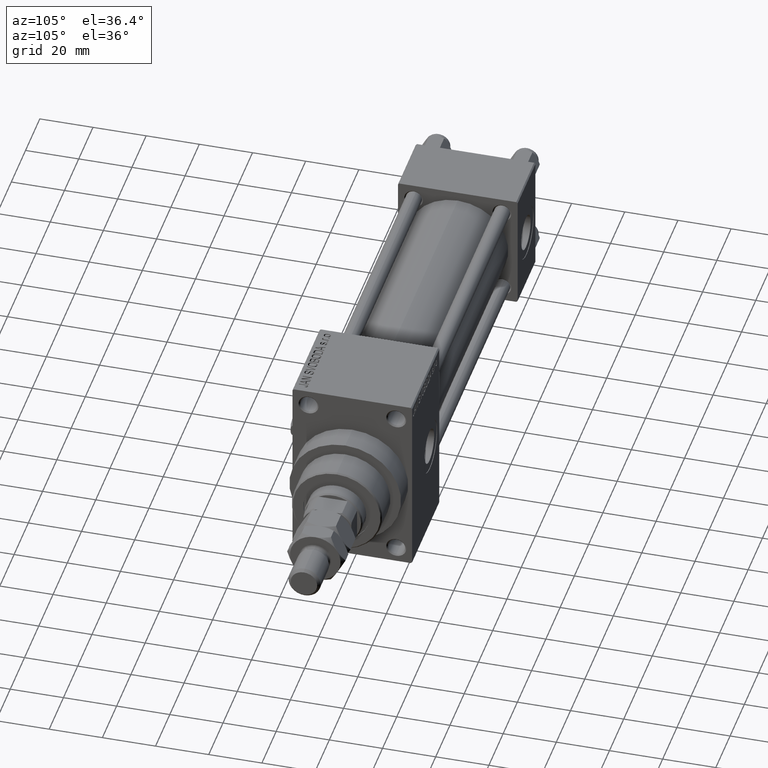
[diagram: clean part render]
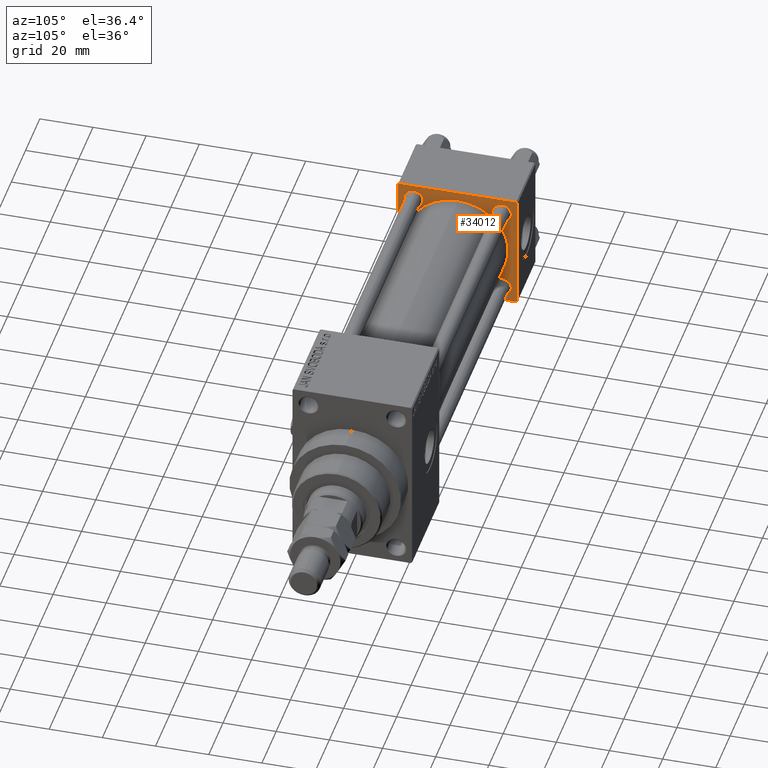
[diagram: same view with one face highlighted and labeled with its STEP entity id]
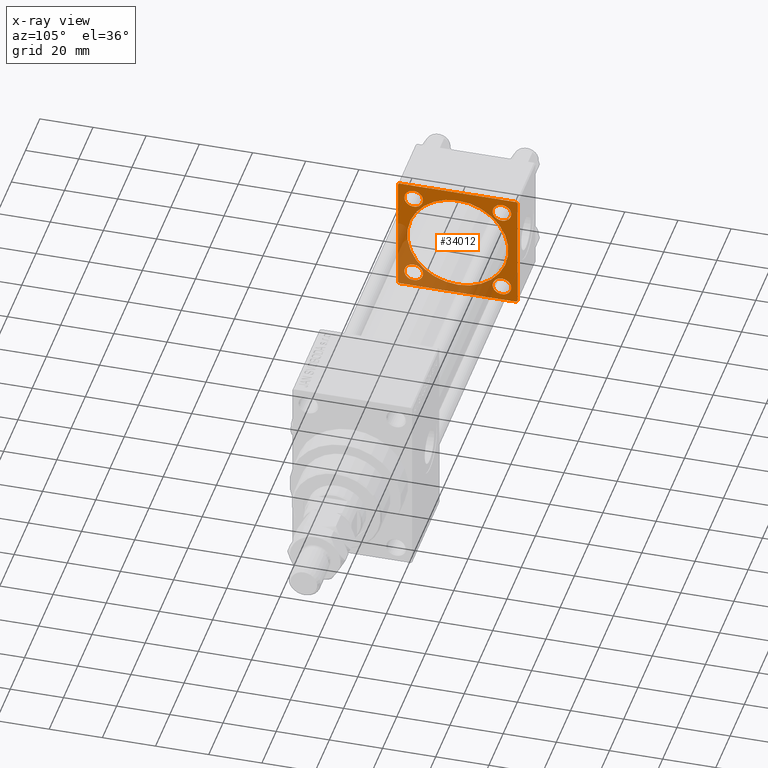
[diagram: x-ray of the same camera — body ghosted, the highlighted face saturated]
A machine part, auxiliary view. The second image highlights one B-rep face of the part: STEP entity #34012.
The next image is the same camera in x-ray: the body ghosted, the highlighted face saturated — about 36% of this face is hidden behind the body in this view.
In plain terms, the highlighted planar face has unit normal (-1, 0, 0).
Its self-contained STEP definition (entity closure, byte-faithful):
#781 = FACE_BOUND ( 'NONE', #8004, .T. ) ;
#1005 = DIRECTION ( 'NONE',  ( -1.000000000000000000, 0.000000000000000000, -0.000000000000000000 ) ) ;
#1059 = AXIS2_PLACEMENT_3D ( 'NONE', #39213, #1005, #47109 ) ;
#1289 = FACE_BOUND ( 'NONE', #22256, .T. ) ;
#1407 = EDGE_CURVE ( 'NONE', #49249, #23749, #19034, .T. ) ;
#1524 = AXIS2_PLACEMENT_3D ( 'NONE', #46007, #42186, #31465 ) ;
#1911 = CARTESIAN_POINT ( 'NONE',  ( 25.00000000000000000, -21.99999999999997158, -22.50000000000000711 ) ) ;
#2138 = EDGE_CURVE ( 'NONE', #45616, #9106, #15018, .T. ) ;
#2153 = EDGE_LOOP ( 'NONE', ( #38649, #6108 ) ) ;
#2847 = ORIENTED_EDGE ( 'NONE', *, *, #11459, .T. ) ;
#3067 = VECTOR ( 'NONE', #40077, 1000.000000000000000 ) ;
#3137 = CARTESIAN_POINT ( 'NONE',  ( 25.00000000000000000, -22.50000000000000000, 22.00000000000000000 ) ) ;
#3171 = EDGE_LOOP ( 'NONE', ( #14715, #17188, #38747, #24097, #47128, #11143, #6271, #31227 ) ) ;
#3297 = CIRCLE ( 'NONE', #23607, 3.500000000000003109 ) ;
#4238 = VERTEX_POINT ( 'NONE', #42453 ) ;
#5284 = CARTESIAN_POINT ( 'NONE',  ( 25.00000000000000000, 22.50000000000000000, -21.99999999999996803 ) ) ;
#5353 = PLANE ( 'NONE',  #12742 ) ;
#5509 = CARTESIAN_POINT ( 'NONE',  ( 25.00000000000000000, 22.50000000000000000, 22.50000000000000355 ) ) ;
#5865 = VERTEX_POINT ( 'NONE', #45171 ) ;
#5962 = CIRCLE ( 'NONE', #29555, 3.499999999999975131 ) ;
#6031 = VECTOR ( 'NONE', #16960, 1000.000000000000000 ) ;
#6108 = ORIENTED_EDGE ( 'NONE', *, *, #1407, .T. ) ;
#6271 = ORIENTED_EDGE ( 'NONE', *, *, #15678, .T. ) ;
#6984 = LINE ( 'NONE', #31139, #37593 ) ;
#7757 = DIRECTION ( 'NONE',  ( -1.000000000000000000, 0.000000000000000000, -0.000000000000000000 ) ) ;
#8004 = EDGE_LOOP ( 'NONE', ( #14800, #12056 ) ) ;
#8222 = EDGE_CURVE ( 'NONE', #30710, #5865, #50309, .T. ) ;
#8687 = CARTESIAN_POINT ( 'NONE',  ( 25.00000000000000000, 0.000000000000000000, 0.000000000000000000 ) ) ;
#9106 = VERTEX_POINT ( 'NONE', #40431 ) ;
#10540 = VERTEX_POINT ( 'NONE', #38725 ) ;
#11143 = ORIENTED_EDGE ( 'NONE', *, *, #32190, .T. ) ;
#11256 = AXIS2_PLACEMENT_3D ( 'NONE', #37040, #29396, #40608 ) ;
#11459 = EDGE_CURVE ( 'NONE', #23916, #47083, #3297, .T. ) ;
#11530 = CARTESIAN_POINT ( 'NONE',  ( 25.00000000000000000, -21.99999999999998579, -22.50000000000000711 ) ) ;
#12056 = ORIENTED_EDGE ( 'NONE', *, *, #22491, .T. ) ;
#12562 = EDGE_LOOP ( 'NONE', ( #2847, #49112 ) ) ;
#12581 = AXIS2_PLACEMENT_3D ( 'NONE', #45262, #37875, #26672 ) ;
#12624 = EDGE_CURVE ( 'NONE', #27920, #45005, #34236, .T. ) ;
#12742 = AXIS2_PLACEMENT_3D ( 'NONE', #8687, #32609, #48149 ) ;
#13154 = CARTESIAN_POINT ( 'NONE',  ( 25.00000000000000000, 22.50000000000000000, 22.50000000000000355 ) ) ;
#13354 = VERTEX_POINT ( 'NONE', #15117 ) ;
#13666 = ORIENTED_EDGE ( 'NONE', *, *, #2138, .T. ) ;
#14715 = ORIENTED_EDGE ( 'NONE', *, *, #37389, .F. ) ;
#14800 = ORIENTED_EDGE ( 'NONE', *, *, #8222, .T. ) ;
#14979 = DIRECTION ( 'NONE',  ( 1.000000000000000000, -0.000000000000000000, 0.000000000000000000 ) ) ;
#15018 = CIRCLE ( 'NONE', #12581, 3.499999999999978684 ) ;
#15117 = CARTESIAN_POINT ( 'NONE',  ( 25.00000000000000000, -22.50000000000000000, -21.99999999999997158 ) ) ;
#15140 = CARTESIAN_POINT ( 'NONE',  ( 24.99999999999999289, -2.752562955852396712E-16, -19.00000000000000000 ) ) ;
#15678 = EDGE_CURVE ( 'NONE', #4238, #13354, #6984, .T. ) ;
#15776 = DIRECTION ( 'NONE',  ( -1.000000000000000000, 0.000000000000000000, -0.000000000000000000 ) ) ;
#15805 = DIRECTION ( 'NONE',  ( 0.000000000000000000, -0.7071067811865474617, 0.7071067811865474617 ) ) ;
#16229 = DIRECTION ( 'NONE',  ( 0.000000000000000000, -1.000000000000000000, -7.709882115452476934E-17 ) ) ;
#16960 = DIRECTION ( 'NONE',  ( 0.000000000000000000, 0.000000000000000000, -1.000000000000000000 ) ) ;
#17188 = ORIENTED_EDGE ( 'NONE', *, *, #31960, .T. ) ;
#17868 = CARTESIAN_POINT ( 'NONE',  ( 25.00000000000000000, -21.99999999999997868, 22.50000000000000000 ) ) ;
#18652 = DIRECTION ( 'NONE',  ( -0.000000000000000000, -0.7071067811865525687, -0.7071067811865425767 ) ) ;
#18917 = EDGE_CURVE ( 'NONE', #34116, #36369, #43312, .T. ) ;
#19034 = CIRCLE ( 'NONE', #46711, 3.499999999999975131 ) ;
#19139 = EDGE_CURVE ( 'NONE', #23749, #49249, #5962, .T. ) ;
#19154 = LINE ( 'NONE', #3137, #25042 ) ;
#20265 = CARTESIAN_POINT ( 'NONE',  ( 25.00000000000000000, 16.59999999999999787, -20.10000000000000853 ) ) ;
#20872 = EDGE_CURVE ( 'NONE', #47083, #23916, #31115, .T. ) ;
#21175 = DIRECTION ( 'NONE',  ( 0.000000000000000000, 0.000000000000000000, 1.000000000000000000 ) ) ;
#21637 = DIRECTION ( 'NONE',  ( 0.000000000000000000, 0.000000000000000000, 1.000000000000000000 ) ) ;
#22136 = CARTESIAN_POINT ( 'NONE',  ( 25.00000000000000000, 22.50000000000000000, 21.99999999999999645 ) ) ;
#22256 = EDGE_LOOP ( 'NONE', ( #13666, #39378 ) ) ;
#22348 = DIRECTION ( 'NONE',  ( 0.000000000000000000, 0.000000000000000000, 1.000000000000000000 ) ) ;
#22384 = DIRECTION ( 'NONE',  ( 0.000000000000000000, 0.000000000000000000, 1.000000000000000000 ) ) ;
#22491 = EDGE_CURVE ( 'NONE', #5865, #30710, #45001, .T. ) ;
#23225 = VECTOR ( 'NONE', #42603, 1000.000000000000000 ) ;
#23281 = CARTESIAN_POINT ( 'NONE',  ( 25.00000000000000000, -16.59999999999999076, -16.60000000000000853 ) ) ;
#23607 = AXIS2_PLACEMENT_3D ( 'NONE', #35158, #15776, #27500 ) ;
#23749 = VERTEX_POINT ( 'NONE', #42975 ) ;
#23916 = VERTEX_POINT ( 'NONE', #39097 ) ;
#24097 = ORIENTED_EDGE ( 'NONE', *, *, #18917, .T. ) ;
#24288 = LINE ( 'NONE', #36509, #3067 ) ;
#24646 = EDGE_CURVE ( 'NONE', #34116, #48167, #37073, .T. ) ;
#25042 = VECTOR ( 'NONE', #18652, 999.9999999999998863 ) ;
#25473 = CARTESIAN_POINT ( 'NONE',  ( 25.00000000000000000, -16.59999999999999076, -16.60000000000000853 ) ) ;
#26324 = DIRECTION ( 'NONE',  ( 0.000000000000000000, 0.000000000000000000, -1.000000000000000000 ) ) ;
#26672 = DIRECTION ( 'NONE',  ( 0.000000000000000000, 0.000000000000000000, 1.000000000000000000 ) ) ;
#26714 = CIRCLE ( 'NONE', #1524, 19.00000000000000000 ) ;
#27500 = DIRECTION ( 'NONE',  ( 0.000000000000000000, 0.000000000000000000, 1.000000000000000000 ) ) ;
#27920 = VERTEX_POINT ( 'NONE', #43492 ) ;
#28049 = VECTOR ( 'NONE', #48325, 1000.000000000000000 ) ;
#28325 = AXIS2_PLACEMENT_3D ( 'NONE', #32909, #47694, #21175 ) ;
#28920 = VERTEX_POINT ( 'NONE', #1911 ) ;
#29343 = AXIS2_PLACEMENT_3D ( 'NONE', #37419, #14979, #22384 ) ;
#29396 = DIRECTION ( 'NONE',  ( -1.000000000000000000, 0.000000000000000000, -0.000000000000000000 ) ) ;
#29555 = AXIS2_PLACEMENT_3D ( 'NONE', #25473, #41008, #21637 ) ;
#29795 = ORIENTED_EDGE ( 'NONE', *, *, #48414, .F. ) ;
#30710 = VERTEX_POINT ( 'NONE', #20265 ) ;
#30807 = EDGE_LOOP ( 'NONE', ( #45987, #29795 ) ) ;
#30861 = CARTESIAN_POINT ( 'NONE',  ( 25.00000000000000000, 21.99999999999999289, 22.50000000000000355 ) ) ;
#31115 = CIRCLE ( 'NONE', #1059, 3.500000000000003109 ) ;
#31139 = CARTESIAN_POINT ( 'NONE',  ( 25.00000000000000000, -22.50000000000000000, 22.50000000000000000 ) ) ;
#31149 = AXIS2_PLACEMENT_3D ( 'NONE', #37391, #34084, #22348 ) ;
#31227 = ORIENTED_EDGE ( 'NONE', *, *, #38827, .T. ) ;
#31465 = DIRECTION ( 'NONE',  ( 0.000000000000000000, 0.000000000000000000, 1.000000000000000000 ) ) ;
#31846 = FACE_BOUND ( 'NONE', #30807, .T. ) ;
#31960 = EDGE_CURVE ( 'NONE', #10540, #48167, #24288, .T. ) ;
#32190 = EDGE_CURVE ( 'NONE', #36593, #4238, #19154, .T. ) ;
#32529 = CARTESIAN_POINT ( 'NONE',  ( 25.00000000000000000, 21.99999999999999289, 22.50000000000000355 ) ) ;
#32609 = DIRECTION ( 'NONE',  ( -1.000000000000000000, 0.000000000000000000, -0.000000000000000000 ) ) ;
#32909 = CARTESIAN_POINT ( 'NONE',  ( 25.00000000000000000, 16.59999999999999787, -16.60000000000000497 ) ) ;
#33370 = CARTESIAN_POINT ( 'NONE',  ( 25.00000000000000000, -16.59999999999999076, -13.10000000000003162 ) ) ;
#34012 = ADVANCED_FACE ( 'NONE', ( #35670, #781, #1289, #40242, #31846, #47385 ), #5353, .F. ) ;
#34084 = DIRECTION ( 'NONE',  ( -1.000000000000000000, 0.000000000000000000, -0.000000000000000000 ) ) ;
#34116 = VERTEX_POINT ( 'NONE', #22136 ) ;
#34236 = CIRCLE ( 'NONE', #29343, 19.00000000000000000 ) ;
#35158 = CARTESIAN_POINT ( 'NONE',  ( 25.00000000000000000, 16.59999999999999787, 16.60000000000000497 ) ) ;
#35272 = VECTOR ( 'NONE', #15805, 1000.000000000000114 ) ;
#35651 = VECTOR ( 'NONE', #16229, 1000.000000000000000 ) ;
#35670 = FACE_BOUND ( 'NONE', #2153, .T. ) ;
#36369 = VERTEX_POINT ( 'NONE', #32529 ) ;
#36509 = CARTESIAN_POINT ( 'NONE',  ( 25.00000000000000000, 22.50000000000000000, -21.99999999999998224 ) ) ;
#36593 = VERTEX_POINT ( 'NONE', #17868 ) ;
#37040 = CARTESIAN_POINT ( 'NONE',  ( 25.00000000000000000, -16.59999999999999076, 16.60000000000000853 ) ) ;
#37073 = LINE ( 'NONE', #5509, #6031 ) ;
#37103 = CARTESIAN_POINT ( 'NONE',  ( 25.00000000000000000, 22.50000000000000000, -22.49999999999999645 ) ) ;
#37389 = EDGE_CURVE ( 'NONE', #10540, #28920, #40924, .T. ) ;
#37391 = CARTESIAN_POINT ( 'NONE',  ( 25.00000000000000000, 16.59999999999999787, -16.60000000000000497 ) ) ;
#37419 = CARTESIAN_POINT ( 'NONE',  ( 24.99999999999999289, -2.602085213965210642E-15, 0.000000000000000000 ) ) ;
#37593 = VECTOR ( 'NONE', #26324, 1000.000000000000000 ) ;
#37875 = DIRECTION ( 'NONE',  ( -1.000000000000000000, 0.000000000000000000, -0.000000000000000000 ) ) ;
#38285 = LINE ( 'NONE', #11530, #23225 ) ;
#38649 = ORIENTED_EDGE ( 'NONE', *, *, #19139, .T. ) ;
#38725 = CARTESIAN_POINT ( 'NONE',  ( 25.00000000000000000, 21.99999999999999289, -22.49999999999999645 ) ) ;
#38747 = ORIENTED_EDGE ( 'NONE', *, *, #24646, .F. ) ;
#38820 = DIRECTION ( 'NONE',  ( 0.000000000000000000, 0.000000000000000000, 1.000000000000000000 ) ) ;
#38827 = EDGE_CURVE ( 'NONE', #13354, #28920, #38285, .T. ) ;
#39097 = CARTESIAN_POINT ( 'NONE',  ( 25.00000000000000000, 16.59999999999999787, 13.10000000000000142 ) ) ;
#39213 = CARTESIAN_POINT ( 'NONE',  ( 25.00000000000000000, 16.59999999999999787, 16.60000000000000497 ) ) ;
#39378 = ORIENTED_EDGE ( 'NONE', *, *, #48717, .T. ) ;
#40077 = DIRECTION ( 'NONE',  ( -0.000000000000000000, 0.7071067811865426878, 0.7071067811865524577 ) ) ;
#40242 = FACE_BOUND ( 'NONE', #12562, .T. ) ;
#40431 = CARTESIAN_POINT ( 'NONE',  ( 25.00000000000000000, -16.59999999999999076, 20.09999999999998721 ) ) ;
#40608 = DIRECTION ( 'NONE',  ( 0.000000000000000000, 0.000000000000000000, 1.000000000000000000 ) ) ;
#40924 = LINE ( 'NONE', #37103, #28049 ) ;
#41008 = DIRECTION ( 'NONE',  ( -1.000000000000000000, 0.000000000000000000, -0.000000000000000000 ) ) ;
#41367 = CIRCLE ( 'NONE', #11256, 3.499999999999978684 ) ;
#42186 = DIRECTION ( 'NONE',  ( 1.000000000000000000, -0.000000000000000000, 0.000000000000000000 ) ) ;
#42453 = CARTESIAN_POINT ( 'NONE',  ( 25.00000000000000000, -22.50000000000000000, 22.00000000000000000 ) ) ;
#42603 = DIRECTION ( 'NONE',  ( 0.000000000000000000, 0.7071067811865426878, -0.7071067811865524577 ) ) ;
#42975 = CARTESIAN_POINT ( 'NONE',  ( 25.00000000000000000, -16.59999999999999076, -20.09999999999998366 ) ) ;
#43312 = LINE ( 'NONE', #30861, #35272 ) ;
#43492 = CARTESIAN_POINT ( 'NONE',  ( 24.99999999999999289, -2.602085213965210642E-15, 19.00000000000000000 ) ) ;
#45001 = CIRCLE ( 'NONE', #31149, 3.500000000000003109 ) ;
#45005 = VERTEX_POINT ( 'NONE', #15140 ) ;
#45171 = CARTESIAN_POINT ( 'NONE',  ( 25.00000000000000000, 16.59999999999999787, -13.10000000000000142 ) ) ;
#45262 = CARTESIAN_POINT ( 'NONE',  ( 25.00000000000000000, -16.59999999999999076, 16.60000000000000853 ) ) ;
#45616 = VERTEX_POINT ( 'NONE', #48679 ) ;
#45987 = ORIENTED_EDGE ( 'NONE', *, *, #12624, .F. ) ;
#46007 = CARTESIAN_POINT ( 'NONE',  ( 24.99999999999999289, -2.602085213965210642E-15, 0.000000000000000000 ) ) ;
#46711 = AXIS2_PLACEMENT_3D ( 'NONE', #23281, #7757, #38820 ) ;
#47083 = VERTEX_POINT ( 'NONE', #49061 ) ;
#47109 = DIRECTION ( 'NONE',  ( 0.000000000000000000, 0.000000000000000000, 1.000000000000000000 ) ) ;
#47128 = ORIENTED_EDGE ( 'NONE', *, *, #48104, .T. ) ;
#47322 = LINE ( 'NONE', #13154, #35651 ) ;
#47385 = FACE_OUTER_BOUND ( 'NONE', #3171, .T. ) ;
#47694 = DIRECTION ( 'NONE',  ( -1.000000000000000000, 0.000000000000000000, -0.000000000000000000 ) ) ;
#48104 = EDGE_CURVE ( 'NONE', #36369, #36593, #47322, .T. ) ;
#48149 = DIRECTION ( 'NONE',  ( -0.000000000000000000, 0.000000000000000000, 1.000000000000000000 ) ) ;
#48167 = VERTEX_POINT ( 'NONE', #5284 ) ;
#48325 = DIRECTION ( 'NONE',  ( 0.000000000000000000, -1.000000000000000000, -2.312964634635742957E-16 ) ) ;
#48414 = EDGE_CURVE ( 'NONE', #45005, #27920, #26714, .T. ) ;
#48679 = CARTESIAN_POINT ( 'NONE',  ( 25.00000000000000000, -16.59999999999999076, 13.10000000000002807 ) ) ;
#48717 = EDGE_CURVE ( 'NONE', #9106, #45616, #41367, .T. ) ;
#49061 = CARTESIAN_POINT ( 'NONE',  ( 25.00000000000000000, 16.59999999999999787, 20.10000000000000853 ) ) ;
#49112 = ORIENTED_EDGE ( 'NONE', *, *, #20872, .T. ) ;
#49249 = VERTEX_POINT ( 'NONE', #33370 ) ;
#50309 = CIRCLE ( 'NONE', #28325, 3.500000000000003109 ) ;